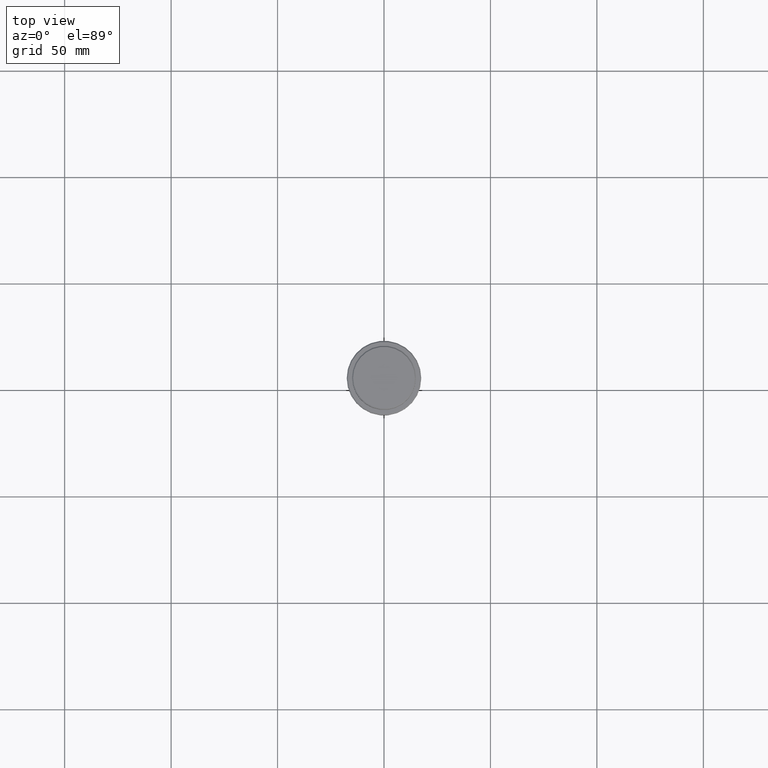
[diagram: clean part render]
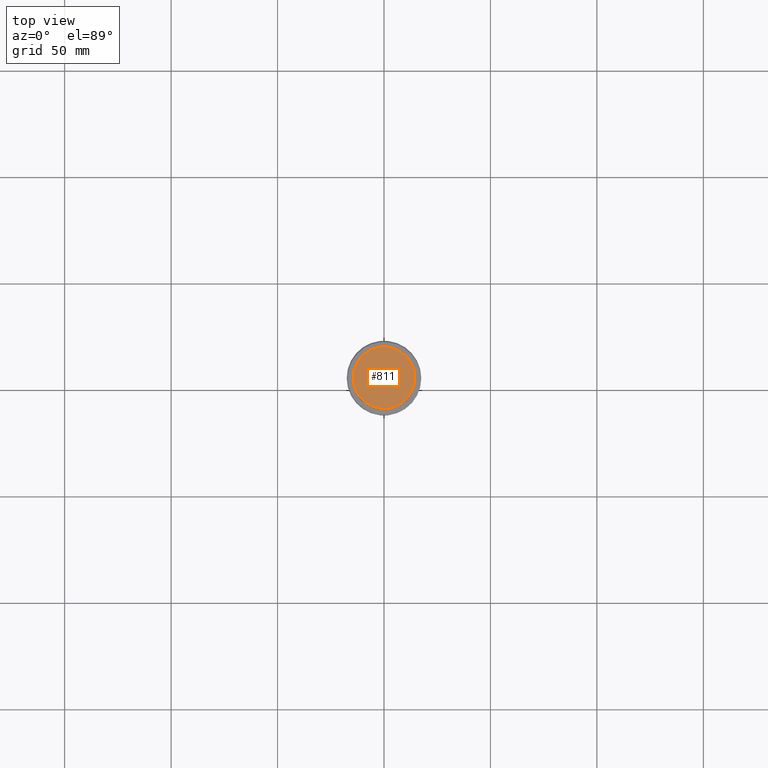
[diagram: same view with one face highlighted and labeled with its STEP entity id]
A machine part, top view. The second image highlights one B-rep face of the part: STEP entity #811.
In plain terms, the highlighted planar face has unit normal (0, -0, 1).
Its self-contained STEP definition (entity closure, byte-faithful):
#20 = EDGE_LOOP ( 'NONE', ( #1311, #845 ) ) ;
#131 = DIRECTION ( 'NONE',  ( 1.000000000000000000, 0.000000000000000000, 0.000000000000000000 ) ) ;
#141 = AXIS2_PLACEMENT_3D ( 'NONE', #911, #458, #131 ) ;
#215 = PLANE ( 'NONE',  #786 ) ;
#312 = DIRECTION ( 'NONE',  ( 0.000000000000000000, -0.000000000000000000, 1.000000000000000000 ) ) ;
#351 = CIRCLE ( 'NONE', #1078, 14.50000000000001066 ) ;
#432 = CARTESIAN_POINT ( 'NONE',  ( 0.000000000000000000, 0.000000000000000000, 0.000000000000000000 ) ) ;
#458 = DIRECTION ( 'NONE',  ( -0.000000000000000000, -0.000000000000000000, 1.000000000000000000 ) ) ;
#605 = VERTEX_POINT ( 'NONE', #1384 ) ;
#658 = DIRECTION ( 'NONE',  ( 1.000000000000000000, 0.000000000000000000, 0.000000000000000000 ) ) ;
#703 = CARTESIAN_POINT ( 'NONE',  ( -14.50000000000001066, 0.000000000000000000, 0.000000000000000000 ) ) ;
#746 = DIRECTION ( 'NONE',  ( 1.000000000000000000, 0.000000000000000000, 0.000000000000000000 ) ) ;
#786 = AXIS2_PLACEMENT_3D ( 'NONE', #1092, #312, #658 ) ;
#806 = CIRCLE ( 'NONE', #141, 14.50000000000001066 ) ;
#811 = ADVANCED_FACE ( 'NONE', ( #977 ), #215, .T. ) ;
#845 = ORIENTED_EDGE ( 'NONE', *, *, #857, .T. ) ;
#857 = EDGE_CURVE ( 'NONE', #605, #1061, #351, .T. ) ;
#909 = EDGE_CURVE ( 'NONE', #1061, #605, #806, .T. ) ;
#911 = CARTESIAN_POINT ( 'NONE',  ( 0.000000000000000000, 0.000000000000000000, 0.000000000000000000 ) ) ;
#977 = FACE_OUTER_BOUND ( 'NONE', #20, .T. ) ;
#996 = DIRECTION ( 'NONE',  ( -0.000000000000000000, -0.000000000000000000, 1.000000000000000000 ) ) ;
#1061 = VERTEX_POINT ( 'NONE', #703 ) ;
#1078 = AXIS2_PLACEMENT_3D ( 'NONE', #432, #996, #746 ) ;
#1092 = CARTESIAN_POINT ( 'NONE',  ( 0.000000000000000000, 0.000000000000000000, 0.000000000000000000 ) ) ;
#1311 = ORIENTED_EDGE ( 'NONE', *, *, #909, .T. ) ;
#1384 = CARTESIAN_POINT ( 'NONE',  ( 14.50000000000001066, 1.806354028742346591E-15, 0.000000000000000000 ) ) ;